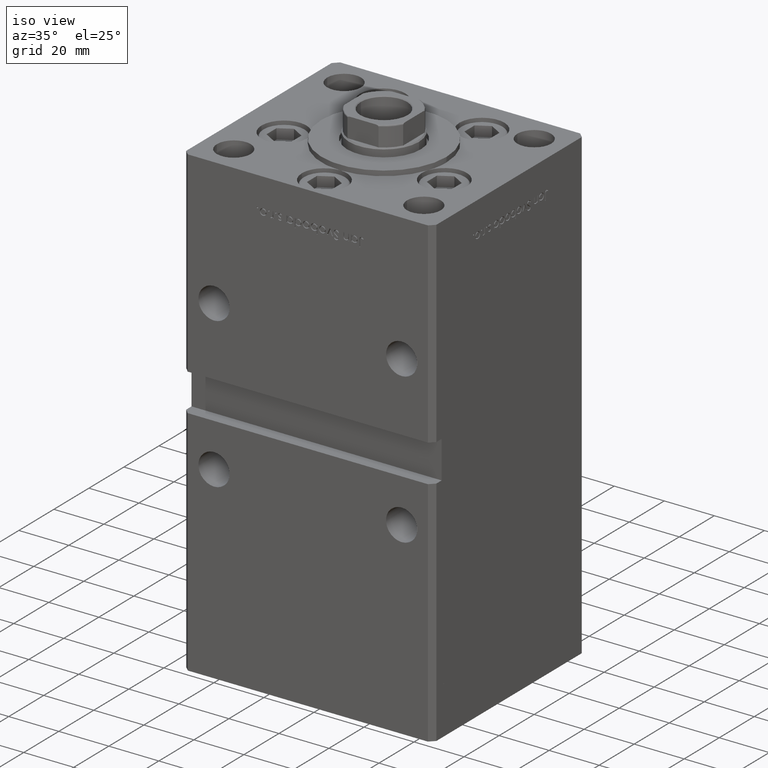
[diagram: clean part render]
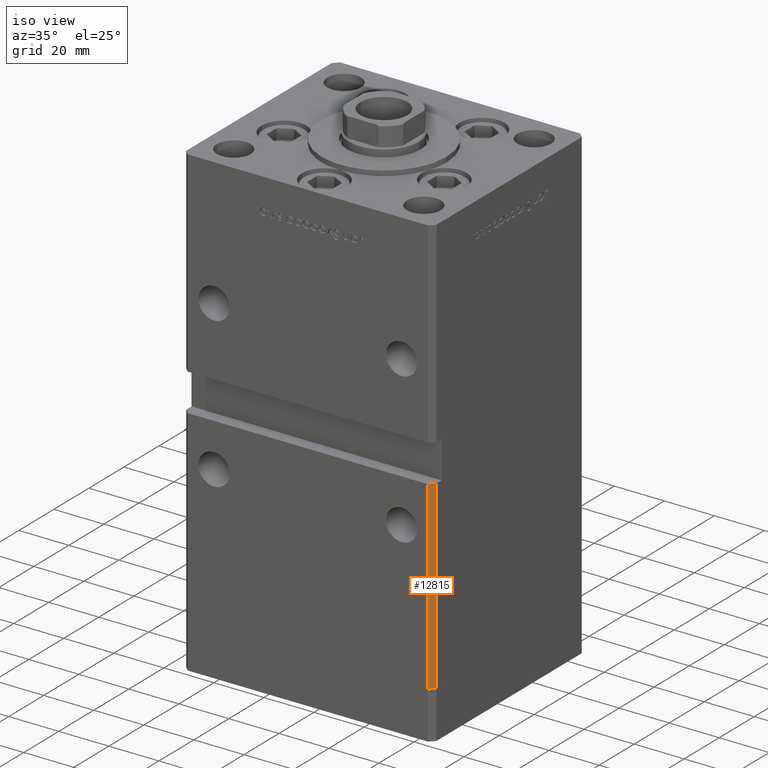
[diagram: same view with one face highlighted and labeled with its STEP entity id]
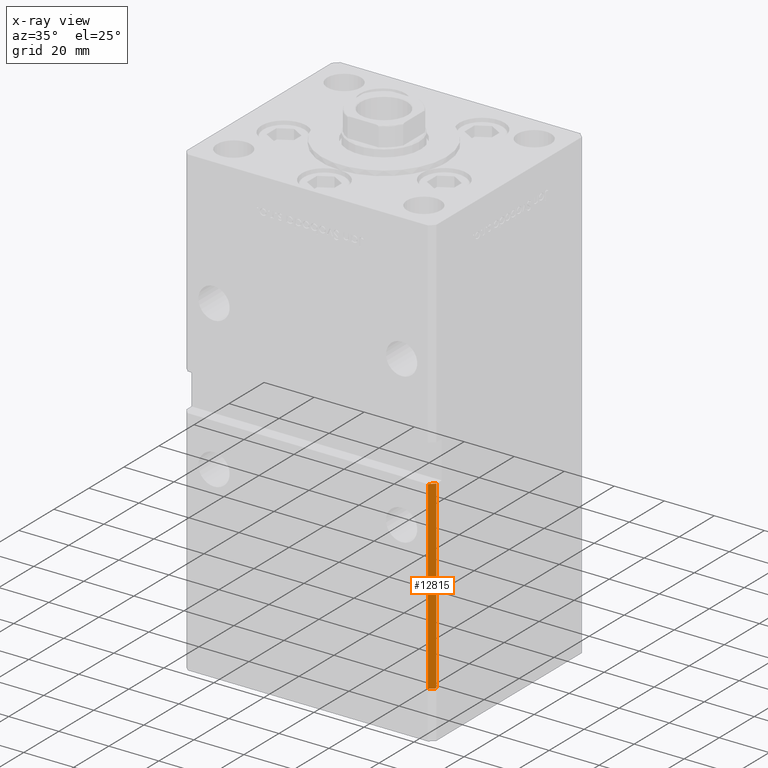
[diagram: x-ray of the same camera — body ghosted, the highlighted face saturated]
A machine part, iso view. The second image highlights one B-rep face of the part: STEP entity #12815.
The next image is the same camera in x-ray: the body ghosted, the highlighted face saturated — about 0% of this face is hidden behind the body in this view.
In plain terms, the highlighted planar face has unit normal (0.7071, -0.7071, 0).
Its self-contained STEP definition (entity closure, byte-faithful):
#613 = DIRECTION ( 'NONE',  ( 0.7071067811865475727, -0.7071067811865475727, 0.000000000000000000 ) ) ;
#830 = CARTESIAN_POINT ( 'NONE',  ( 49.99999999999998579, -41.49999999999999289, 74.00000000000000000 ) ) ;
#3703 = DIRECTION ( 'NONE',  ( -0.7071067811865474617, -0.7071067811865474617, 0.000000000000000000 ) ) ;
#5935 = EDGE_CURVE ( 'NONE', #19529, #34203, #38426, .T. ) ;
#12815 = ADVANCED_FACE ( 'NONE', ( #17541 ), #25099, .T. ) ;
#14490 = DIRECTION ( 'NONE',  ( -0.000000000000000000, -0.000000000000000000, -1.000000000000000000 ) ) ;
#16719 = CARTESIAN_POINT ( 'NONE',  ( 49.99999999999998579, -41.49999999999999289, 0.000000000000000000 ) ) ;
#17541 = FACE_OUTER_BOUND ( 'NONE', #21371, .T. ) ;
#19529 = VERTEX_POINT ( 'NONE', #44307 ) ;
#21371 = EDGE_LOOP ( 'NONE', ( #39388, #40702, #34998, #36631 ) ) ;
#21586 = DIRECTION ( 'NONE',  ( 0.7071067811865474617, 0.7071067811865474617, 0.000000000000000000 ) ) ;
#21603 = CARTESIAN_POINT ( 'NONE',  ( 47.99999999999998579, -43.50000000000000000, 0.000000000000000000 ) ) ;
#22672 = CARTESIAN_POINT ( 'NONE',  ( 49.99999999999998579, -41.49999999999999289, 74.00000000000000000 ) ) ;
#23597 = CARTESIAN_POINT ( 'NONE',  ( 49.99999999999998579, -41.49999999999999289, 0.000000000000000000 ) ) ;
#25099 = PLANE ( 'NONE',  #29212 ) ;
#29212 = AXIS2_PLACEMENT_3D ( 'NONE', #29647, #613, #21586 ) ;
#29647 = CARTESIAN_POINT ( 'NONE',  ( 49.99999999999998579, -41.49999999999999289, 148.5000000000000000 ) ) ;
#29697 = EDGE_CURVE ( 'NONE', #37408, #34203, #40520, .T. ) ;
#30477 = LINE ( 'NONE', #22672, #51327 ) ;
#31939 = EDGE_CURVE ( 'NONE', #34533, #37408, #34273, .T. ) ;
#34203 = VERTEX_POINT ( 'NONE', #21603 ) ;
#34273 = LINE ( 'NONE', #43368, #47614 ) ;
#34533 = VERTEX_POINT ( 'NONE', #830 ) ;
#34998 = ORIENTED_EDGE ( 'NONE', *, *, #29697, .F. ) ;
#36631 = ORIENTED_EDGE ( 'NONE', *, *, #31939, .F. ) ;
#37408 = VERTEX_POINT ( 'NONE', #16719 ) ;
#38426 = LINE ( 'NONE', #47000, #43595 ) ;
#39388 = ORIENTED_EDGE ( 'NONE', *, *, #49411, .F. ) ;
#40520 = LINE ( 'NONE', #23597, #51846 ) ;
#40702 = ORIENTED_EDGE ( 'NONE', *, *, #5935, .T. ) ;
#42289 = DIRECTION ( 'NONE',  ( 0.7071067811865474617, 0.7071067811865474617, 0.000000000000000000 ) ) ;
#43368 = CARTESIAN_POINT ( 'NONE',  ( 49.99999999999998579, -41.49999999999999289, 148.5000000000000000 ) ) ;
#43595 = VECTOR ( 'NONE', #14490, 1000.000000000000000 ) ;
#44307 = CARTESIAN_POINT ( 'NONE',  ( 47.99999999999998579, -43.50000000000000000, 74.00000000000000000 ) ) ;
#47000 = CARTESIAN_POINT ( 'NONE',  ( 47.99999999999998579, -43.50000000000000000, 148.5000000000000000 ) ) ;
#47614 = VECTOR ( 'NONE', #50649, 1000.000000000000000 ) ;
#49411 = EDGE_CURVE ( 'NONE', #19529, #34533, #30477, .T. ) ;
#50649 = DIRECTION ( 'NONE',  ( -0.000000000000000000, -0.000000000000000000, -1.000000000000000000 ) ) ;
#51327 = VECTOR ( 'NONE', #42289, 1000.000000000000114 ) ;
#51846 = VECTOR ( 'NONE', #3703, 1000.000000000000114 ) ;